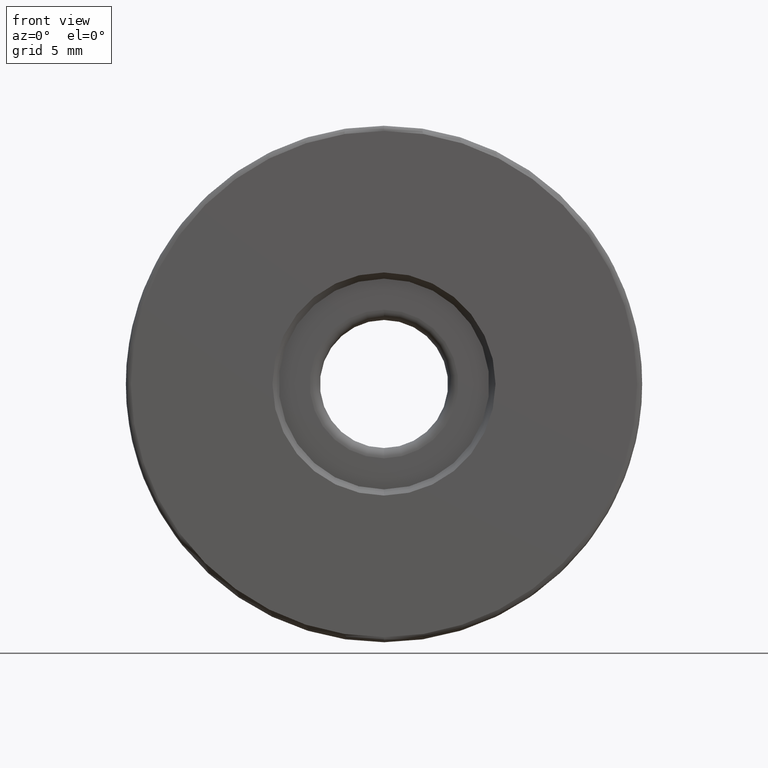
[diagram: clean part render]
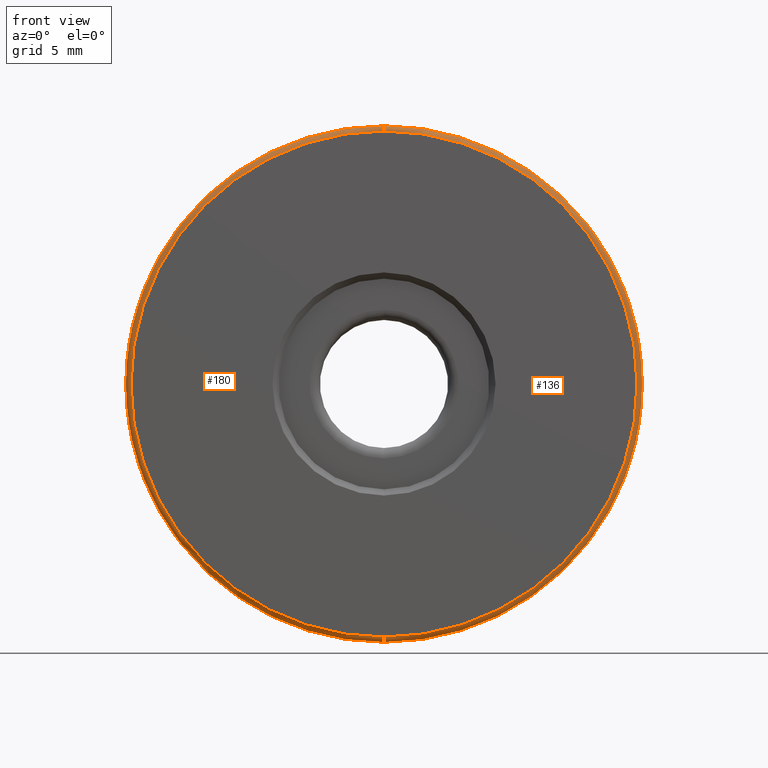
[diagram: same view with one multi-face feature highlighted, each face labeled with its STEP entity id]
A machine part, front view. The highlighted faces form ONE feature: a constant-radius fillet chain: 2 tangent blend faces with common blend radius 0.25 mm. The faces share edges in the B-rep.
Their STEP definitions:
[1] entity #136 (Torus):
#30 = CARTESIAN_POINT ( 'NONE',  ( -4.682026255059964726, -2.594975976998274980, 25.00000000000000000 ) ) ;
#34 = DIRECTION ( 'NONE',  ( -0.0000000000000000000, -1.000000000000000000, -0.0000000000000000000 ) ) ;
#51 = CARTESIAN_POINT ( 'NONE',  ( -4.682026255059964726, -2.344975976998274980, 25.00000000000000000 ) ) ;
#53 = AXIS2_PLACEMENT_3D ( 'NONE', #276, #533, #97 ) ;
#59 = VERTEX_POINT ( 'NONE', #154 ) ;
#86 = CIRCLE ( 'NONE', #614, 12.25000000000000355 ) ;
#97 = DIRECTION ( 'NONE',  ( 0.0000000000000000000, 0.0000000000000000000, 1.000000000000000000 ) ) ;
#108 = AXIS2_PLACEMENT_3D ( 'NONE', #559, #452, #400 ) ;
#136 = ADVANCED_FACE ( 'NONE', ( #255 ), #242, .T. ) ;
#154 = CARTESIAN_POINT ( 'NONE',  ( -4.682026255059964726, -2.594975976998274980, 37.25000000000000711 ) ) ;
#217 = CARTESIAN_POINT ( 'NONE',  ( -4.682026255059964726, -2.344975976998274980, 37.25000000000000711 ) ) ;
#218 = DIRECTION ( 'NONE',  ( 0.0000000000000000000, 0.0000000000000000000, 1.000000000000000000 ) ) ;
#233 = CIRCLE ( 'NONE', #108, 0.2500000000000002220 ) ;
#242 = TOROIDAL_SURFACE ( 'NONE', #344, 12.25000000000000000, 0.2500000000000000000 ) ;
#245 = CARTESIAN_POINT ( 'NONE',  ( -4.682026255059964726, -2.344975976998274980, 12.50000000000000000 ) ) ;
#255 = FACE_OUTER_BOUND ( 'NONE', #451, .T. ) ;
#256 = EDGE_CURVE ( 'NONE', #320, #472, #233, .T. ) ;
#261 = AXIS2_PLACEMENT_3D ( 'NONE', #217, #408, #414 ) ;
#269 = VERTEX_POINT ( 'NONE', #449 ) ;
#276 = CARTESIAN_POINT ( 'NONE',  ( -4.682026255059964726, -2.344975976998274980, 25.00000000000000000 ) ) ;
#286 = EDGE_CURVE ( 'NONE', #59, #269, #615, .T. ) ;
#320 = VERTEX_POINT ( 'NONE', #569 ) ;
#344 = AXIS2_PLACEMENT_3D ( 'NONE', #51, #488, #537 ) ;
#376 = EDGE_CURVE ( 'NONE', #269, #472, #595, .T. ) ;
#400 = DIRECTION ( 'NONE',  ( 0.0000000000000000000, 0.0000000000000000000, -1.000000000000000000 ) ) ;
#408 = DIRECTION ( 'NONE',  ( -1.000000000000000000, 0.0000000000000000000, 0.0000000000000000000 ) ) ;
#409 = ORIENTED_EDGE ( 'NONE', *, *, #256, .T. ) ;
#414 = DIRECTION ( 'NONE',  ( 0.0000000000000000000, 0.0000000000000000000, 1.000000000000000000 ) ) ;
#431 = ORIENTED_EDGE ( 'NONE', *, *, #528, .F. ) ;
#449 = CARTESIAN_POINT ( 'NONE',  ( -4.682026255059962949, -2.344975976998274980, 37.50000000000000711 ) ) ;
#451 = EDGE_LOOP ( 'NONE', ( #431, #409, #590, #529 ) ) ;
#452 = DIRECTION ( 'NONE',  ( 1.000000000000000000, -0.0000000000000000000, 1.224646799147353207E-16 ) ) ;
#472 = VERTEX_POINT ( 'NONE', #245 ) ;
#488 = DIRECTION ( 'NONE',  ( 0.0000000000000000000, 1.000000000000000000, 0.0000000000000000000 ) ) ;
#528 = EDGE_CURVE ( 'NONE', #320, #59, #86, .T. ) ;
#529 = ORIENTED_EDGE ( 'NONE', *, *, #286, .F. ) ;
#533 = DIRECTION ( 'NONE',  ( 0.0000000000000000000, 1.000000000000000000, 0.0000000000000000000 ) ) ;
#537 = DIRECTION ( 'NONE',  ( 0.0000000000000000000, 0.0000000000000000000, 1.000000000000000000 ) ) ;
#559 = CARTESIAN_POINT ( 'NONE',  ( -4.682026255059962949, -2.344975976998274980, 12.75000000000000178 ) ) ;
#569 = CARTESIAN_POINT ( 'NONE',  ( -4.682026255059962949, -2.594975976998274980, 12.75000000000000178 ) ) ;
#590 = ORIENTED_EDGE ( 'NONE', *, *, #376, .F. ) ;
#595 = CIRCLE ( 'NONE', #53, 12.50000000000000355 ) ;
#614 = AXIS2_PLACEMENT_3D ( 'NONE', #30, #34, #218 ) ;
#615 = CIRCLE ( 'NONE', #261, 0.2500000000000002220 ) ;
[2] entity #180 (Torus):
#59 = VERTEX_POINT ( 'NONE', #154 ) ;
#73 = CIRCLE ( 'NONE', #479, 12.50000000000000355 ) ;
#108 = AXIS2_PLACEMENT_3D ( 'NONE', #559, #452, #400 ) ;
#111 = DIRECTION ( 'NONE',  ( 0.0000000000000000000, 0.0000000000000000000, 1.000000000000000000 ) ) ;
#131 = TOROIDAL_SURFACE ( 'NONE', #436, 12.25000000000000000, 0.2500000000000000000 ) ;
#150 = EDGE_CURVE ( 'NONE', #472, #269, #73, .T. ) ;
#154 = CARTESIAN_POINT ( 'NONE',  ( -4.682026255059964726, -2.594975976998274980, 37.25000000000000711 ) ) ;
#157 = FACE_OUTER_BOUND ( 'NONE', #219, .T. ) ;
#180 = ADVANCED_FACE ( 'NONE', ( #157 ), #131, .T. ) ;
#215 = DIRECTION ( 'NONE',  ( 0.0000000000000000000, 1.000000000000000000, 0.0000000000000000000 ) ) ;
#216 = ORIENTED_EDGE ( 'NONE', *, *, #340, .F. ) ;
#217 = CARTESIAN_POINT ( 'NONE',  ( -4.682026255059964726, -2.344975976998274980, 37.25000000000000711 ) ) ;
#219 = EDGE_LOOP ( 'NONE', ( #532, #216, #309, #602 ) ) ;
#233 = CIRCLE ( 'NONE', #108, 0.2500000000000002220 ) ;
#245 = CARTESIAN_POINT ( 'NONE',  ( -4.682026255059964726, -2.344975976998274980, 12.50000000000000000 ) ) ;
#256 = EDGE_CURVE ( 'NONE', #320, #472, #233, .T. ) ;
#261 = AXIS2_PLACEMENT_3D ( 'NONE', #217, #408, #414 ) ;
#269 = VERTEX_POINT ( 'NONE', #449 ) ;
#286 = EDGE_CURVE ( 'NONE', #59, #269, #615, .T. ) ;
#309 = ORIENTED_EDGE ( 'NONE', *, *, #286, .T. ) ;
#318 = DIRECTION ( 'NONE',  ( 0.0000000000000000000, 0.0000000000000000000, 1.000000000000000000 ) ) ;
#320 = VERTEX_POINT ( 'NONE', #569 ) ;
#335 = CIRCLE ( 'NONE', #388, 12.25000000000000355 ) ;
#339 = DIRECTION ( 'NONE',  ( 0.0000000000000000000, 1.000000000000000000, 0.0000000000000000000 ) ) ;
#340 = EDGE_CURVE ( 'NONE', #59, #320, #335, .T. ) ;
#388 = AXIS2_PLACEMENT_3D ( 'NONE', #563, #426, #318 ) ;
#400 = DIRECTION ( 'NONE',  ( 0.0000000000000000000, 0.0000000000000000000, -1.000000000000000000 ) ) ;
#408 = DIRECTION ( 'NONE',  ( -1.000000000000000000, 0.0000000000000000000, 0.0000000000000000000 ) ) ;
#414 = DIRECTION ( 'NONE',  ( 0.0000000000000000000, 0.0000000000000000000, 1.000000000000000000 ) ) ;
#426 = DIRECTION ( 'NONE',  ( -0.0000000000000000000, -1.000000000000000000, -0.0000000000000000000 ) ) ;
#436 = AXIS2_PLACEMENT_3D ( 'NONE', #497, #215, #550 ) ;
#449 = CARTESIAN_POINT ( 'NONE',  ( -4.682026255059962949, -2.344975976998274980, 37.50000000000000711 ) ) ;
#452 = DIRECTION ( 'NONE',  ( 1.000000000000000000, -0.0000000000000000000, 1.224646799147353207E-16 ) ) ;
#472 = VERTEX_POINT ( 'NONE', #245 ) ;
#479 = AXIS2_PLACEMENT_3D ( 'NONE', #545, #339, #111 ) ;
#497 = CARTESIAN_POINT ( 'NONE',  ( -4.682026255059964726, -2.344975976998274980, 25.00000000000000000 ) ) ;
#532 = ORIENTED_EDGE ( 'NONE', *, *, #256, .F. ) ;
#545 = CARTESIAN_POINT ( 'NONE',  ( -4.682026255059964726, -2.344975976998274980, 25.00000000000000000 ) ) ;
#550 = DIRECTION ( 'NONE',  ( 0.0000000000000000000, 0.0000000000000000000, 1.000000000000000000 ) ) ;
#559 = CARTESIAN_POINT ( 'NONE',  ( -4.682026255059962949, -2.344975976998274980, 12.75000000000000178 ) ) ;
#563 = CARTESIAN_POINT ( 'NONE',  ( -4.682026255059964726, -2.594975976998274980, 25.00000000000000000 ) ) ;
#569 = CARTESIAN_POINT ( 'NONE',  ( -4.682026255059962949, -2.594975976998274980, 12.75000000000000178 ) ) ;
#602 = ORIENTED_EDGE ( 'NONE', *, *, #150, .F. ) ;
#615 = CIRCLE ( 'NONE', #261, 0.2500000000000002220 ) ;